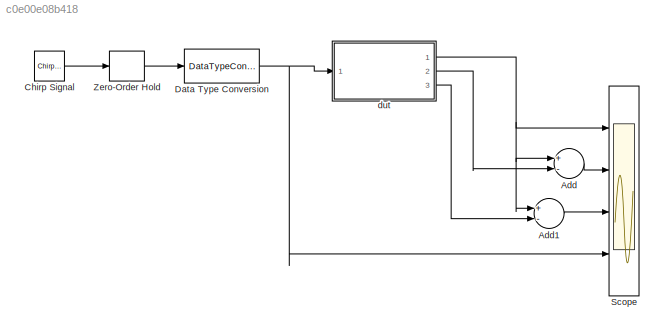
MODEL slx_c0e00e08b418
KIND model
CONFIG AbsTol = auto
CONFIG FixedStep = auto
CONFIG MaxStep = auto
CONFIG MinStep = auto
CONFIG RelTol = 1e-3
CONFIG SampleTimeConstraint = Unconstrained
CONFIG Solver = FixedStepDiscrete
CONFIG SolverMode = SingleTasking
CONFIG SolverName = FixedStepDiscrete
CONFIG StartTime = 0.0
CONFIG StopTime = 4
BLOCK [Sum] Add
  InputSameDT = off
  Inputs = +-
  OutDataTypeStr = Inherit: Inherit via internal rule
  Ports = [2, 1]
  SaturateOnIntegerOverflow = off
BLOCK [Sum] Add1
  InputSameDT = off
  Inputs = +-
  OutDataTypeStr = Inherit: Inherit via internal rule
  Ports = [2, 1]
  SaturateOnIntegerOverflow = off
BLOCK [Reference] Chirp Signal  REF=simulink/Sources/Chirp Signal
  Ports = [0, 1]
  SourceBlock = simulink/Sources/Chirp Signal
  SourceType = chirp
BLOCK [DataTypeConversion] Data Type Conversion
  OutDataTypeStr = fixdt(1,16,10)
  RndMeth = Floor
  SaturateOnIntegerOverflow = off
BLOCK [Scope] Scope
  NumInputPorts = 4
  Ports = [4]
  ScopeSpecificationString = Simulink.scopes.TimeScopeBlockCfg('CurrentConfiguration', extmgr.ConfigurationSet(extmgr.Configuration('Core','General UI',true),extmgr.Configuration('Core','Source UI',true),extmgr.Configuration('Sources','WiredSimulink',true,'DataLoggingSaveFormat','StructureWithTime','DataLoggingDecimation','1','DataLoggingDecimateData',true),extmgr.Configuration('Visuals','Time Domain',true,'SerializedDisplays...<+3751ch>
BLOCK [ZeroOrderHold] Zero-Order Hold
  SampleTime = 1/1000
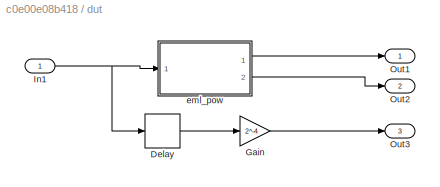
BLOCK [SubSystem] dut
  Ports = [1, 3]
  RequestExecContextInheritance = off
  Variant = off
BLOCK [Delay] dut/Delay
  DelayLength = 1
  InputPortMap = u0
  Ports = [1, 1]
BLOCK [Gain] dut/Gain
  Gain = 2^-4
  OutDataTypeStr = Inherit: Inherit via internal rule
  ParamDataTypeStr = Inherit: Inherit via internal rule
  SaturateOnIntegerOverflow = off
BLOCK [Inport] dut/In1
  IconDisplay = Port number
BLOCK [Outport] dut/Out1
  IconDisplay = Port number
BLOCK [Outport] dut/Out2
  IconDisplay = Port number
  Port = 2
BLOCK [Outport] dut/Out3
  IconDisplay = Port number
  Port = 3
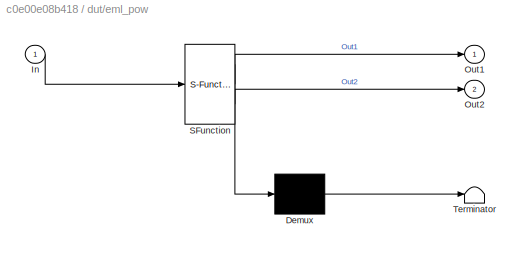
BLOCK [SubSystem] dut/eml_pow
  ErrorFcn = Stateflow.Translate.translate
  PermitHierarchicalResolution = ExplicitOnly
  Ports = [1, 2]
  RequestExecContextInheritance = off
  SFBlockType = MATLAB Function
  TreatAsAtomicUnit = on
  Variant = off
BLOCK [Demux] dut/eml_pow/ Demux 
  Outputs = 1
  Ports = [1, 1]
BLOCK [S-Function] dut/eml_pow/ SFunction 
  EnableBusSupport = on
  FunctionName = sf_sfun
  PortCounts = [1 3]
  Ports = [1, 3]
  SFunctionDeploymentMode = off
  Tag = Stateflow S-Function mlf_cast_ 2
BLOCK [Terminator] dut/eml_pow/ Terminator 
BLOCK [Inport] dut/eml_pow/In
  IconDisplay = Port number
BLOCK [Outport] dut/eml_pow/Out1
  IconDisplay = Port number
BLOCK [Outport] dut/eml_pow/Out2
  IconDisplay = Port number
  Port = 2
LINE Add1:1 -> Scope:3
LINE Add:1 -> Scope:2
LINE Chirp Signal:1 -> Zero-Order Hold:1
NET Data Type Conversion:1 -> Scope:4, dut:1
LINE Zero-Order Hold:1 -> Data Type Conversion:1
LINE dut/Delay:1 -> dut/Gain:1
LINE dut/Gain:1 -> dut/Out3:1
NET dut/In1:1 -> dut/Delay:1, dut/eml_pow:1
LINE dut/eml_pow:1 -> dut/Out1:1
LINE dut/eml_pow:2 -> dut/Out2:1
NET dut:1 -> Add1:1, Add:1, Scope:1
LINE dut:2 -> Add:2
LINE dut:3 -> Add1:2
note: NET lines group one-source signal fan-out (src -> all destinations, sorted); 1:1 wires keep LINE
CHART dut/eml_pow states=1 transitions=1
  STATE_LABEL 'eML_blk_kernel()'
  STATE_LABEL "SCRIPT:\nfunction [Out1,Out2] = fcn(In)\n\n% nt_in = numerictype(In);\nnt_in = numerictype(1, 16, 14);\npersistent buf1 buf2\nif isempty(buf1)||isempty(buf2)\n\tbuf1 = fi(0, nt_in);\n\tbuf2 = fi(0, nt_in);\n\t\nend\n\nOut1 = buf1;\nOut2 = buf2;\n\n% buf1 = fi(In*fi(2^-4, 0, 4, 4), nt_in);\nbuf1 = cast(In*fi(2^-4, 0, 4, 4), 'like', buf1);\nbuf2 = fi(In*fi(0.0625, 0, 4, 4), nt_in);\n% buf1 = fi(In*(2^-4), 1, 16, 14);\n% ...<+35ch>"
